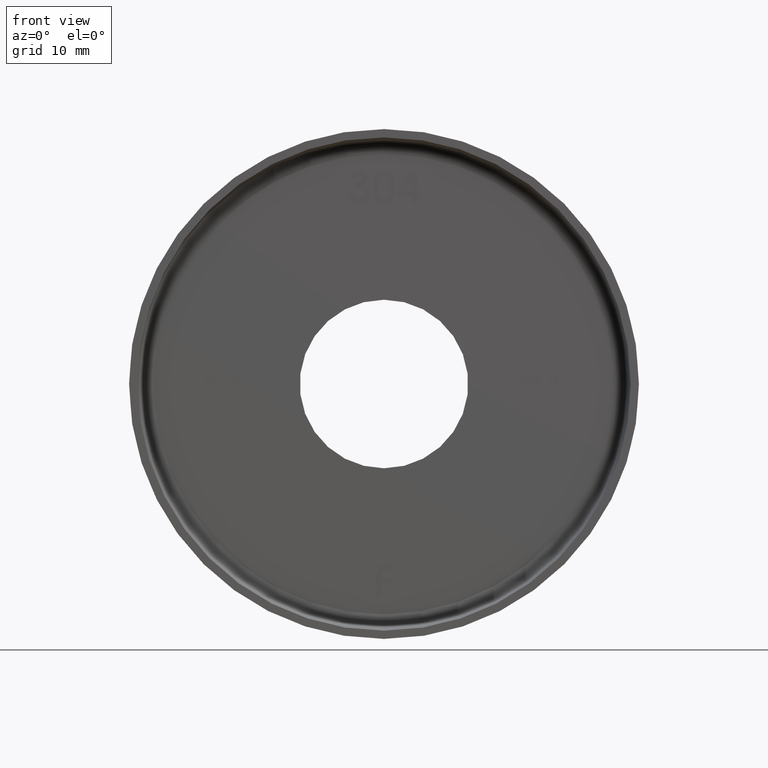
[diagram: clean part render]
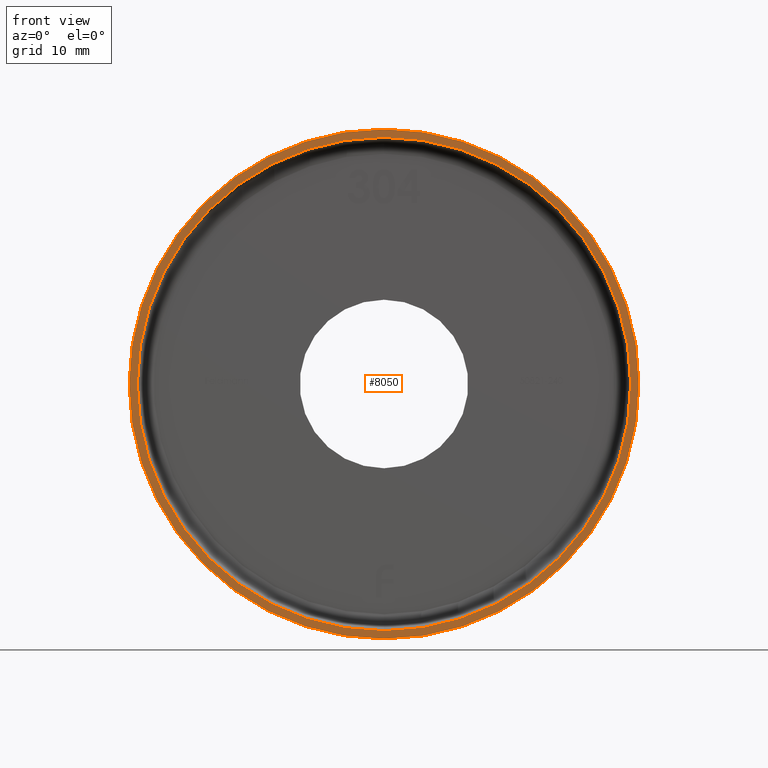
[diagram: same view with one face highlighted and labeled with its STEP entity id]
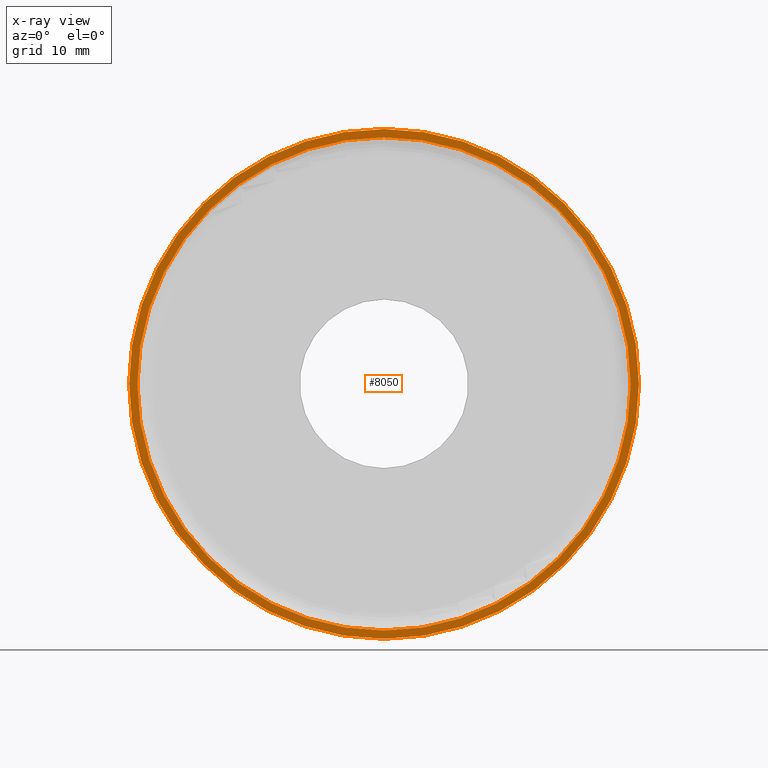
[diagram: x-ray of the same camera — body ghosted, the highlighted face saturated]
A machine part, front view. The second image highlights one B-rep face of the part: STEP entity #8050.
The next image is the same camera in x-ray: the body ghosted, the highlighted face saturated — about 0% of this face is hidden behind the body in this view.
In plain terms, the highlighted planar face has unit normal (0, -1, -0).
Its self-contained STEP definition (entity closure, byte-faithful):
#364 = DIRECTION ( 'NONE',  ( -0.000000000000000000, -1.000000000000000000, -0.000000000000000000 ) ) ;
#482 = EDGE_CURVE ( 'NONE', #14642, #7468, #13008, .T. ) ;
#1304 = CARTESIAN_POINT ( 'NONE',  ( 30.00000000000000000, -6.123233995736766036E-17, 0.000000000000000000 ) ) ;
#1377 = FACE_OUTER_BOUND ( 'NONE', #2184, .T. ) ;
#1393 = ORIENTED_EDGE ( 'NONE', *, *, #2372, .T. ) ;
#1785 = DIRECTION ( 'NONE',  ( 0.000000000000000000, 0.000000000000000000, -1.000000000000000000 ) ) ;
#2184 = EDGE_LOOP ( 'NONE', ( #1393, #10023 ) ) ;
#2226 = AXIS2_PLACEMENT_3D ( 'NONE', #16282, #8710, #10087 ) ;
#2372 = EDGE_CURVE ( 'NONE', #10686, #10421, #15669, .T. ) ;
#2537 = AXIS2_PLACEMENT_3D ( 'NONE', #1304, #13967, #13914 ) ;
#2542 = CARTESIAN_POINT ( 'NONE',  ( 0.000000000000000000, -1.224646799147353207E-16, -30.00000000000000000 ) ) ;
#3858 = CARTESIAN_POINT ( 'NONE',  ( 3.673940397442059178E-15, -1.224646799147353207E-16, 30.00000000000000000 ) ) ;
#4013 = EDGE_LOOP ( 'NONE', ( #14445, #15943 ) ) ;
#4968 = AXIS2_PLACEMENT_3D ( 'NONE', #13749, #364, #10240 ) ;
#5161 = PLANE ( 'NONE',  #2537 ) ;
#5391 = CARTESIAN_POINT ( 'NONE',  ( 0.000000000000000000, -1.224646799147353207E-16, 0.000000000000000000 ) ) ;
#6802 = DIRECTION ( 'NONE',  ( -0.000000000000000000, -1.000000000000000000, -0.000000000000000000 ) ) ;
#6813 = EDGE_CURVE ( 'NONE', #10421, #10686, #8680, .T. ) ;
#7468 = VERTEX_POINT ( 'NONE', #2542 ) ;
#7664 = CIRCLE ( 'NONE', #12258, 30.00000000000000000 ) ;
#8050 = ADVANCED_FACE ( 'NONE', ( #1377, #13966 ), #5161, .T. ) ;
#8680 = CIRCLE ( 'NONE', #2226, 31.00000000000000000 ) ;
#8710 = DIRECTION ( 'NONE',  ( -0.000000000000000000, -1.000000000000000000, -0.000000000000000000 ) ) ;
#9683 = DIRECTION ( 'NONE',  ( -0.000000000000000000, -1.000000000000000000, -0.000000000000000000 ) ) ;
#10023 = ORIENTED_EDGE ( 'NONE', *, *, #6813, .T. ) ;
#10087 = DIRECTION ( 'NONE',  ( 0.000000000000000000, 0.000000000000000000, -1.000000000000000000 ) ) ;
#10090 = EDGE_CURVE ( 'NONE', #7468, #14642, #7664, .T. ) ;
#10240 = DIRECTION ( 'NONE',  ( 0.000000000000000000, 0.000000000000000000, -1.000000000000000000 ) ) ;
#10421 = VERTEX_POINT ( 'NONE', #12845 ) ;
#10686 = VERTEX_POINT ( 'NONE', #15849 ) ;
#11065 = CARTESIAN_POINT ( 'NONE',  ( 0.000000000000000000, -1.224646799147353207E-16, 0.000000000000000000 ) ) ;
#12258 = AXIS2_PLACEMENT_3D ( 'NONE', #5391, #6802, #1785 ) ;
#12845 = CARTESIAN_POINT ( 'NONE',  ( 3.796405077356795115E-15, 0.000000000000000000, 31.00000000000000000 ) ) ;
#13008 = CIRCLE ( 'NONE', #13590, 30.00000000000000000 ) ;
#13590 = AXIS2_PLACEMENT_3D ( 'NONE', #11065, #9683, #14588 ) ;
#13749 = CARTESIAN_POINT ( 'NONE',  ( 0.000000000000000000, 0.000000000000000000, 0.000000000000000000 ) ) ;
#13914 = DIRECTION ( 'NONE',  ( 0.000000000000000000, 0.000000000000000000, -1.000000000000000000 ) ) ;
#13966 = FACE_BOUND ( 'NONE', #4013, .T. ) ;
#13967 = DIRECTION ( 'NONE',  ( 0.000000000000000000, -1.000000000000000000, -0.000000000000000000 ) ) ;
#14445 = ORIENTED_EDGE ( 'NONE', *, *, #10090, .F. ) ;
#14588 = DIRECTION ( 'NONE',  ( 0.000000000000000000, 0.000000000000000000, -1.000000000000000000 ) ) ;
#14642 = VERTEX_POINT ( 'NONE', #3858 ) ;
#15669 = CIRCLE ( 'NONE', #4968, 31.00000000000000000 ) ;
#15849 = CARTESIAN_POINT ( 'NONE',  ( 0.000000000000000000, 0.000000000000000000, -31.00000000000000000 ) ) ;
#15943 = ORIENTED_EDGE ( 'NONE', *, *, #482, .F. ) ;
#16282 = CARTESIAN_POINT ( 'NONE',  ( 0.000000000000000000, 0.000000000000000000, 0.000000000000000000 ) ) ;